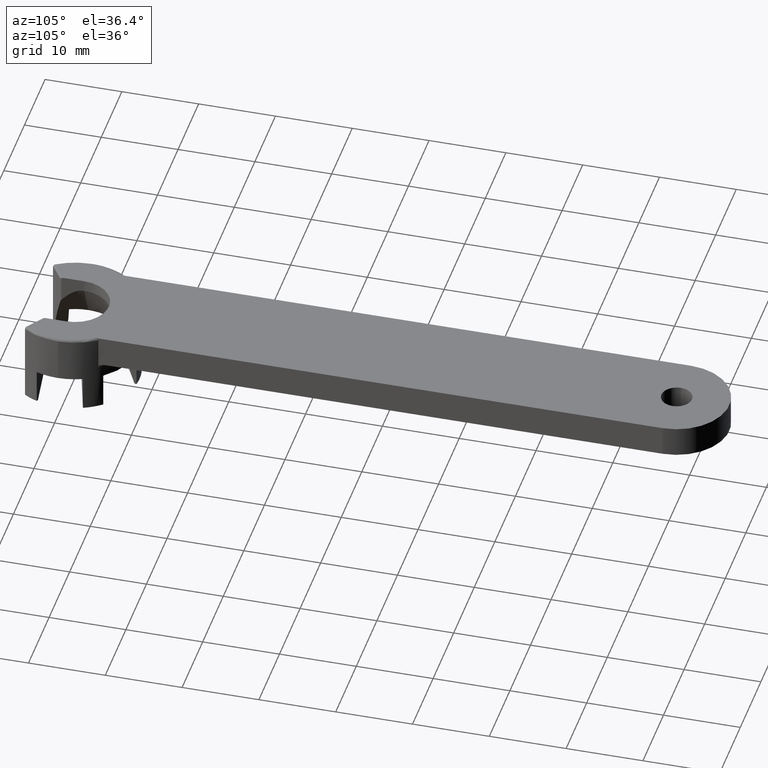
[diagram: clean part render]
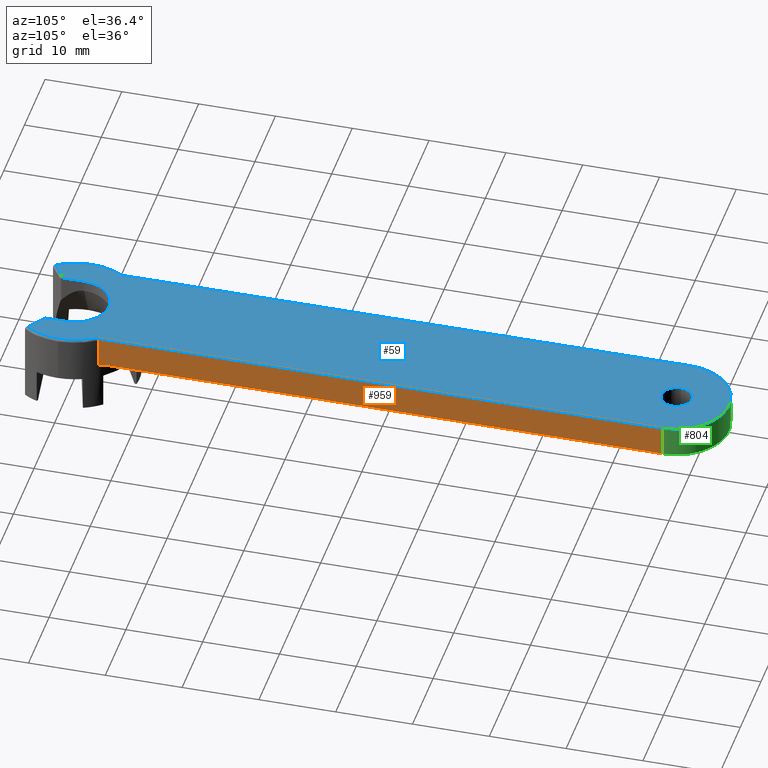
[diagram: same view with three faces highlighted in distinct colors, each labeled with its STEP entity id]
A machine part, auxiliary view with three faces highlighted in distinct colors.
Their STEP definitions:

[orange] entity #959 — the highlighted planar face has unit normal (1, 0, 0).
#29 = ORIENTED_EDGE ( 'NONE', *, *, #1816, .T. ) ;
#65 = CARTESIAN_POINT ( 'NONE',  ( 6.850000001173179400, 4.861841213576216300, -4.500000000667159700 ) ) ;
#69 = VERTEX_POINT ( 'NONE', #126 ) ;
#71 = VERTEX_POINT ( 'NONE', #981 ) ;
#126 = CARTESIAN_POINT ( 'NONE',  ( 6.849999999605628000, 5.682209071596507700, -4.000000000435521800 ) ) ;
#132 = DIRECTION ( 'NONE',  ( 1.000000000000000000, 0.0000000000000000000, 0.0000000000000000000 ) ) ;
#176 = ORIENTED_EDGE ( 'NONE', *, *, #1231, .F. ) ;
#183 = CARTESIAN_POINT ( 'NONE',  ( 6.849999999999983700, 4.752669607071316800, -0.1107333794296606700 ) ) ;
#218 = CARTESIAN_POINT ( 'NONE',  ( 6.850000000000158600, 5.097191367687830900, -4.149656468199564700 ) ) ;
#250 = CARTESIAN_POINT ( 'NONE',  ( 6.849999999999998800, 5.506700625122019400, -4.000000000791916800 ) ) ;
#272 = EDGE_CURVE ( 'NONE', #518, #946, #1308, .T. ) ;
#283 = CARTESIAN_POINT ( 'NONE',  ( 6.849999999999997000, 5.022899319984244200, -4.198901507569537700 ) ) ;
#284 = EDGE_CURVE ( 'NONE', #946, #69, #1718, .T. ) ;
#297 = CARTESIAN_POINT ( 'NONE',  ( 6.849999999999999600, 78.33195793500000500, -4.000000000677499800 ) ) ;
#299 = CARTESIAN_POINT ( 'NONE',  ( 6.850000000000001400, 4.435505287406861900, -1.398266221809085000E-009 ) ) ;
#315 = VECTOR ( 'NONE', #1374, 1000.000000000000000 ) ;
#338 = CARTESIAN_POINT ( 'NONE',  ( 6.850000002346358300, 4.861841211707238500, -5.400000000000000400 ) ) ;
#383 = CARTESIAN_POINT ( 'NONE',  ( 6.849999999605628000, 5.682209071596507700, -4.000000000435521800 ) ) ;
#429 = CARTESIAN_POINT ( 'NONE',  ( 6.849999999999998800, 4.861841214974312200, -0.2428762086956518200 ) ) ;
#464 = DIRECTION ( 'NONE',  ( -0.0000000000000000000, -0.0000000000000000000, -1.000000000000000000 ) ) ;
#466 = VECTOR ( 'NONE', #464, 1000.000000000000000 ) ;
#473 = LINE ( 'NONE', #1778, #1590 ) ;
#478 = CARTESIAN_POINT ( 'NONE',  ( 6.849999999999984500, 4.832323553165372800, -0.1901260061074411500 ) ) ;
#500 = ORIENTED_EDGE ( 'NONE', *, *, #284, .T. ) ;
#518 = VERTEX_POINT ( 'NONE', #1433 ) ;
#534 = DIRECTION ( 'NONE',  ( 0.0000000000000000000, 1.000000000000000000, 0.0000000000000000000 ) ) ;
#550 = CARTESIAN_POINT ( 'NONE',  ( 6.850000000000000500, 41.10540386449999800, -4.000000001354999700 ) ) ;
#581 = VECTOR ( 'NONE', #1165, 1000.000000000000000 ) ;
#582 = CARTESIAN_POINT ( 'NONE',  ( 6.850000001173179400, 4.861841213576216300, -4.500000000667159700 ) ) ;
#593 = CARTESIAN_POINT ( 'NONE',  ( 6.850000000000004100, 4.861841215095461500, -4.411136597396323500 ) ) ;
#649 = ORIENTED_EDGE ( 'NONE', *, *, #272, .T. ) ;
#774 = VERTEX_POINT ( 'NONE', #297 ) ;
#777 = ORIENTED_EDGE ( 'NONE', *, *, #1395, .T. ) ;
#784 = PLANE ( 'NONE',  #1702 ) ;
#851 = VERTEX_POINT ( 'NONE', #872 ) ;
#872 = CARTESIAN_POINT ( 'NONE',  ( 6.850000000122799200, 78.33195793500000500, 0.0000000000000000000 ) ) ;
#946 = VERTEX_POINT ( 'NONE', #65 ) ;
#959 = ADVANCED_FACE ( 'NONE', ( #1175 ), #784, .T. ) ;
#981 = CARTESIAN_POINT ( 'NONE',  ( 6.850000000270616100, 4.322904132074961900, 1.543469040012108700E-010 ) ) ;
#987 = CARTESIAN_POINT ( 'NONE',  ( 6.849999999988751800, 4.548634380269079200, -0.01666168045728944800 ) ) ;
#988 = LINE ( 'NONE', #550, #581 ) ;
#1013 = CARTESIAN_POINT ( 'NONE',  ( 6.849999999988750900, 4.703004633877794700, -0.08173695558695912000 ) ) ;
#1052 = CARTESIAN_POINT ( 'NONE',  ( 6.850000000270616100, 4.322904132074961900, 1.543469040012108700E-010 ) ) ;
#1082 = LINE ( 'NONE', #1811, #315 ) ;
#1165 = DIRECTION ( 'NONE',  ( 0.0000000000000000000, 1.000000000000000000, 0.0000000000000000000 ) ) ;
#1175 = FACE_OUTER_BOUND ( 'NONE', #1537, .T. ) ;
#1207 = CARTESIAN_POINT ( 'NONE',  ( 6.850000000000156900, 5.331695422654891400, -4.035140024523991000 ) ) ;
#1231 = EDGE_CURVE ( 'NONE', #518, #71, #1387, .T. ) ;
#1300 = EDGE_CURVE ( 'NONE', #851, #71, #1082, .T. ) ;
#1308 = LINE ( 'NONE', #338, #466 ) ;
#1371 = DIRECTION ( 'NONE',  ( 0.0000000000000000000, 0.0000000000000000000, 1.000000000000000000 ) ) ;
#1374 = DIRECTION ( 'NONE',  ( -0.0000000000000000000, -1.000000000000000000, -0.0000000000000000000 ) ) ;
#1387 = B_SPLINE_CURVE_WITH_KNOTS ( 'NONE', 3,
 ( #1491, #429, #478, #183, #1013, #987, #299, #1052 ),
 .UNSPECIFIED., .F., .F.,
 ( 4, 2, 2, 4 ),
 ( 1.037318073236176700E-013, 0.0001678969009672620900, 0.0003357938018307923800, 0.0006715876035578529700 ),
 .UNSPECIFIED. ) ;
#1395 = EDGE_CURVE ( 'NONE', #69, #774, #988, .T. ) ;
#1433 = CARTESIAN_POINT ( 'NONE',  ( 6.850000001173179400, 4.861841213318316000, -0.2999999997764299400 ) ) ;
#1491 = CARTESIAN_POINT ( 'NONE',  ( 6.850000001173179400, 4.861841213318316000, -0.2999999997764299400 ) ) ;
#1512 = ORIENTED_EDGE ( 'NONE', *, *, #1300, .T. ) ;
#1537 = EDGE_LOOP ( 'NONE', ( #777, #29, #1512, #176, #649, #500 ) ) ;
#1551 = CARTESIAN_POINT ( 'NONE',  ( 6.849999999999997900, 4.904381124904035400, -4.328624669411599500 ) ) ;
#1590 = VECTOR ( 'NONE', #1371, 1000.000000000000000 ) ;
#1702 = AXIS2_PLACEMENT_3D ( 'NONE', #1821, #132, #534 ) ;
#1718 = B_SPLINE_CURVE_WITH_KNOTS ( 'NONE', 3,
 ( #582, #593, #1551, #283, #218, #1207, #250, #383 ),
 .UNSPECIFIED., .F., .F.,
 ( 4, 2, 2, 4 ),
 ( 0.0000000000000000000, 0.0002610760151110635600, 0.0005221520302221271100, 0.001044304060444256600 ),
 .UNSPECIFIED. ) ;
#1778 = CARTESIAN_POINT ( 'NONE',  ( 6.850000000000000500, 78.33195793500000500, -2.263500000000000100 ) ) ;
#1811 = CARTESIAN_POINT ( 'NONE',  ( 6.850000000245597900, 40.39246102149999000, 0.0000000000000000000 ) ) ;
#1816 = EDGE_CURVE ( 'NONE', #774, #851, #473, .T. ) ;
#1821 = CARTESIAN_POINT ( 'NONE',  ( 6.850000000000000500, 3.878849793999999300, -4.527000000000000100 ) ) ;

[blue] entity #59 — the highlighted planar face has unit normal (0, 0, -1).
#13 = EDGE_CURVE ( 'NONE', #1134, #878, #57, .T. ) ;
#18 = ORIENTED_EDGE ( 'NONE', *, *, #1300, .F. ) ;
#21 = CARTESIAN_POINT ( 'NONE',  ( 0.0000000000000000000, 0.0000000000000000000, 0.0000000000000000000 ) ) ;
#27 = ORIENTED_EDGE ( 'NONE', *, *, #1398, .F. ) ;
#57 =( BOUNDED_CURVE ( )  B_SPLINE_CURVE ( 3, ( #826, #1095, #1400, #1819 ),
 .UNSPECIFIED., .F., .F. ) 
 B_SPLINE_CURVE_WITH_KNOTS ( ( 4, 4 ),
 ( 0.0000000000000000000, 1.000000000000000000 ),
 .UNSPECIFIED. ) 
 CURVE ( )  GEOMETRIC_REPRESENTATION_ITEM ( )  RATIONAL_B_SPLINE_CURVE ( ( 0.9565783021659147700, 0.9289695674636929700, 0.9263604990199240100, 0.9487510968346080100 ) ) 
 REPRESENTATION_ITEM ( '' )  );
#59 = ADVANCED_FACE ( 'NONE', ( #1522, #369 ), #1405, .F. ) ;
#62 = CARTESIAN_POINT ( 'NONE',  ( 8.197199999999998700, -4.934509854999999900, 0.0000000000000000000 ) ) ;
#71 = VERTEX_POINT ( 'NONE', #981 ) ;
#113 = VERTEX_POINT ( 'NONE', #220 ) ;
#146 = DIRECTION ( 'NONE',  ( -0.0000000000000000000, -1.000000000000000000, -0.0000000000000000000 ) ) ;
#151 = DIRECTION ( 'NONE',  ( 1.000000000000000000, 0.0000000000000000000, 0.0000000000000000000 ) ) ;
#169 = CARTESIAN_POINT ( 'NONE',  ( 2.000000000000000000, 78.33195793500000500, 0.0000000000000000000 ) ) ;
#220 = CARTESIAN_POINT ( 'NONE',  ( 4.399999997087198800, 0.0000000000000000000, 0.0000000000000000000 ) ) ;
#236 = DIRECTION ( 'NONE',  ( 0.0000000000000000000, 1.000000000000000000, 0.0000000000000000000 ) ) ;
#241 = CARTESIAN_POINT ( 'NONE',  ( 6.802652084679373900, -4.397035884494505000, 1.281098994956537900E-010 ) ) ;
#247 = VERTEX_POINT ( 'NONE', #262 ) ;
#260 = AXIS2_PLACEMENT_3D ( 'NONE', #798, #1024, #1669 ) ;
#262 = CARTESIAN_POINT ( 'NONE',  ( -2.000000000000000000, 78.33195793500000500, 0.0000000000000000000 ) ) ;
#265 = AXIS2_PLACEMENT_3D ( 'NONE', #21, #829, #151 ) ;
#269 = VECTOR ( 'NONE', #146, 1000.000000000000000 ) ;
#277 = ORIENTED_EDGE ( 'NONE', *, *, #13, .F. ) ;
#315 = VECTOR ( 'NONE', #1374, 1000.000000000000000 ) ;
#319 = DIRECTION ( 'NONE',  ( -1.000000000000000000, 0.0000000000000000000, 0.0000000000000000000 ) ) ;
#344 = ORIENTED_EDGE ( 'NONE', *, *, #527, .F. ) ;
#351 = LINE ( 'NONE', #1661, #1827 ) ;
#360 = CARTESIAN_POINT ( 'NONE',  ( 6.802652084679373900, -4.397035884494505000, 1.281098994956537900E-010 ) ) ;
#364 = DIRECTION ( 'NONE',  ( 1.000000000000000000, 0.0000000000000000000, 0.0000000000000000000 ) ) ;
#369 = FACE_OUTER_BOUND ( 'NONE', #1247, .T. ) ;
#401 = EDGE_CURVE ( 'NONE', #1154, #113, #760, .T. ) ;
#403 = VERTEX_POINT ( 'NONE', #241 ) ;
#404 = CARTESIAN_POINT ( 'NONE',  ( -4.399999994174400800, 40.39246102149999700, 0.0000000000000000000 ) ) ;
#405 = CARTESIAN_POINT ( 'NONE',  ( 4.385584099257846100, -2.704586643915926700, -3.084238051585808100E-010 ) ) ;
#406 = AXIS2_PLACEMENT_3D ( 'NONE', #62, #1285, #319 ) ;
#431 = AXIS2_PLACEMENT_3D ( 'NONE', #1366, #547, #364 ) ;
#448 = EDGE_CURVE ( 'NONE', #513, #1025, #351, .T. ) ;
#507 = DIRECTION ( 'NONE',  ( -0.8191520442890150000, -0.5735764363510129600, 1.184168568868731200E-015 ) ) ;
#513 = VERTEX_POINT ( 'NONE', #694 ) ;
#517 = LINE ( 'NONE', #1594, #916 ) ;
#527 = EDGE_CURVE ( 'NONE', #1723, #513, #1410, .T. ) ;
#531 = DIRECTION ( 'NONE',  ( 0.0000000000000000000, 1.000000000000000000, 0.0000000000000000000 ) ) ;
#547 = DIRECTION ( 'NONE',  ( 0.0000000000000000000, -0.0000000000000000000, 1.000000000000000000 ) ) ;
#575 = CIRCLE ( 'NONE', #260, 2.000000000000000000 ) ;
#577 = ORIENTED_EDGE ( 'NONE', *, *, #1383, .F. ) ;
#587 = CARTESIAN_POINT ( 'NONE',  ( -6.802652084653912500, -4.397035884533621300, 5.306941210911104300E-011 ) ) ;
#621 = ORIENTED_EDGE ( 'NONE', *, *, #1068, .F. ) ;
#653 = EDGE_CURVE ( 'NONE', #856, #851, #884, .T. ) ;
#654 = CARTESIAN_POINT ( 'NONE',  ( 8.588706341926970500, 1.567779754754059100, 3.858672597099918500E-010 ) ) ;
#674 = AXIS2_PLACEMENT_3D ( 'NONE', #803, #1254, #1602 ) ;
#694 = CARTESIAN_POINT ( 'NONE',  ( -4.400000000000000400, -2.714680815240102500, -2.827032499156528800E-010 ) ) ;
#698 =( BOUNDED_CURVE ( )  B_SPLINE_CURVE ( 3, ( #1733, #654, #780, #360 ),
 .UNSPECIFIED., .F., .T. ) 
 B_SPLINE_CURVE_WITH_KNOTS ( ( 4, 4 ),
 ( 0.0000000000000000000, 1.000000000000000000 ),
 .UNSPECIFIED. ) 
 CURVE ( )  GEOMETRIC_REPRESENTATION_ITEM ( )  RATIONAL_B_SPLINE_CURVE ( ( 0.9395649842596003300, 0.8458369723283696300, 0.8515080782971657900, 0.9565783021659889400 ) ) 
 REPRESENTATION_ITEM ( '' )  );
#703 = CARTESIAN_POINT ( 'NONE',  ( -8.100000000192629600, -1.570955411027285400, 3.858672585732427700E-010 ) ) ;
#725 = CARTESIAN_POINT ( 'NONE',  ( -7.655435703676529300, -3.077694767991057600, 3.858672585732427700E-010 ) ) ;
#760 = LINE ( 'NONE', #1523, #1544 ) ;
#765 = ORIENTED_EDGE ( 'NONE', *, *, #401, .F. ) ;
#780 = CARTESIAN_POINT ( 'NONE',  ( 8.559396322479580400, -1.679177736328699500, 3.858672597239365100E-010 ) ) ;
#798 = CARTESIAN_POINT ( 'NONE',  ( 0.0000000000000000000, 78.33195793500000500, 0.0000000000000000000 ) ) ;
#803 = CARTESIAN_POINT ( 'NONE',  ( 0.0000000000000000000, 78.33195793500000500, 0.0000000000000000000 ) ) ;
#826 = CARTESIAN_POINT ( 'NONE',  ( -8.099999998508527800, 1.666044177617287100E-008, 2.315203560196361700E-010 ) ) ;
#829 = DIRECTION ( 'NONE',  ( 0.0000000000000000000, -0.0000000000000000000, 1.000000000000000000 ) ) ;
#839 = ORIENTED_EDGE ( 'NONE', *, *, #1112, .F. ) ;
#851 = VERTEX_POINT ( 'NONE', #872 ) ;
#856 = VERTEX_POINT ( 'NONE', #1440 ) ;
#868 = VECTOR ( 'NONE', #1341, 1000.000000000000000 ) ;
#872 = CARTESIAN_POINT ( 'NONE',  ( 6.850000000122799200, 78.33195793500000500, 0.0000000000000000000 ) ) ;
#878 = VERTEX_POINT ( 'NONE', #1199 ) ;
#884 = CIRCLE ( 'NONE', #674, 6.850000000000000500 ) ;
#916 = VECTOR ( 'NONE', #531, 1000.000000000000000 ) ;
#981 = CARTESIAN_POINT ( 'NONE',  ( 6.850000000270616100, 4.322904132074961900, 1.543469040012108700E-010 ) ) ;
#997 = EDGE_CURVE ( 'NONE', #1192, #247, #575, .T. ) ;
#1024 = DIRECTION ( 'NONE',  ( 0.0000000000000000000, -0.0000000000000000000, 1.000000000000000000 ) ) ;
#1025 = VERTEX_POINT ( 'NONE', #587 ) ;
#1045 = CARTESIAN_POINT ( 'NONE',  ( -8.099999998508527800, 1.666044177617287400E-008, 2.315203560196361700E-010 ) ) ;
#1068 = EDGE_CURVE ( 'NONE', #247, #1192, #1562, .T. ) ;
#1082 = LINE ( 'NONE', #1811, #315 ) ;
#1085 = ORIENTED_EDGE ( 'NONE', *, *, #653, .F. ) ;
#1095 = CARTESIAN_POINT ( 'NONE',  ( -8.100000000192631300, 1.538247367291374600, 3.858672598290071700E-010 ) ) ;
#1112 = EDGE_CURVE ( 'NONE', #878, #856, #517, .T. ) ;
#1133 = CARTESIAN_POINT ( 'NONE',  ( -6.802652084653912500, -4.397035884533621300, 5.306941210911104300E-011 ) ) ;
#1134 = VERTEX_POINT ( 'NONE', #1045 ) ;
#1142 = EDGE_CURVE ( 'NONE', #403, #1154, #1678, .T. ) ;
#1154 = VERTEX_POINT ( 'NONE', #1173 ) ;
#1173 = CARTESIAN_POINT ( 'NONE',  ( 4.399999997087197000, -2.714680776960466600, -2.313175286082838600E-010 ) ) ;
#1190 = ORIENTED_EDGE ( 'NONE', *, *, #1283, .F. ) ;
#1192 = VERTEX_POINT ( 'NONE', #169 ) ;
#1199 = CARTESIAN_POINT ( 'NONE',  ( -6.850000000012268100, 4.322904132930053000, 1.543469039893453600E-010 ) ) ;
#1247 = EDGE_LOOP ( 'NONE', ( #1786, #1190, #18, #1085, #839, #277, #577, #1773, #344, #27, #765 ) ) ;
#1254 = DIRECTION ( 'NONE',  ( -0.0000000000000000000, 0.0000000000000000000, -1.000000000000000000 ) ) ;
#1283 = EDGE_CURVE ( 'NONE', #71, #403, #698, .T. ) ;
#1285 = DIRECTION ( 'NONE',  ( 0.0000000000000000000, 0.0000000000000000000, -1.000000000000000000 ) ) ;
#1300 = EDGE_CURVE ( 'NONE', #851, #71, #1082, .T. ) ;
#1341 = DIRECTION ( 'NONE',  ( -0.8191520442890161100, 0.5735764363510113000, -0.0000000000000000000 ) ) ;
#1366 = CARTESIAN_POINT ( 'NONE',  ( 0.0000000000000000000, 78.33195793500000500, 0.0000000000000000000 ) ) ;
#1374 = DIRECTION ( 'NONE',  ( -0.0000000000000000000, -1.000000000000000000, -0.0000000000000000000 ) ) ;
#1383 = EDGE_CURVE ( 'NONE', #1025, #1134, #1579, .T. ) ;
#1398 = EDGE_CURVE ( 'NONE', #113, #1723, #1749, .T. ) ;
#1400 = CARTESIAN_POINT ( 'NONE',  ( -7.673262290975019400, 3.018376757509134000, 3.858672598235767800E-010 ) ) ;
#1405 = PLANE ( 'NONE',  #406 ) ;
#1410 = LINE ( 'NONE', #404, #269 ) ;
#1419 = ORIENTED_EDGE ( 'NONE', *, *, #997, .F. ) ;
#1440 = CARTESIAN_POINT ( 'NONE',  ( -6.850000000122798300, 78.33195793359504900, 0.0000000000000000000 ) ) ;
#1502 = CARTESIAN_POINT ( 'NONE',  ( -4.399999997087198800, 0.0000000000000000000, 0.0000000000000000000 ) ) ;
#1522 = FACE_BOUND ( 'NONE', #1524, .T. ) ;
#1523 = CARTESIAN_POINT ( 'NONE',  ( 4.399999994174399900, 40.39246102149999700, 0.0000000000000000000 ) ) ;
#1524 = EDGE_LOOP ( 'NONE', ( #1419, #621 ) ) ;
#1544 = VECTOR ( 'NONE', #236, 1000.000000000000000 ) ;
#1562 = CIRCLE ( 'NONE', #431, 2.000000000000000000 ) ;
#1579 =( BOUNDED_CURVE ( )  B_SPLINE_CURVE ( 3, ( #1133, #725, #703, #1824 ),
 .UNSPECIFIED., .F., .T. ) 
 B_SPLINE_CURVE_WITH_KNOTS ( ( 4, 4 ),
 ( 0.0000000000000000000, 1.000000000000000000 ),
 .UNSPECIFIED. ) 
 CURVE ( )  GEOMETRIC_REPRESENTATION_ITEM ( )  RATIONAL_B_SPLINE_CURVE ( ( 0.9565783021659179900, 0.9305102234900839400, 0.9305102234900839400, 0.9565783021659179900 ) ) 
 REPRESENTATION_ITEM ( '' )  );
#1594 = CARTESIAN_POINT ( 'NONE',  ( -6.850000000245598700, 40.39246102149999700, 0.0000000000000000000 ) ) ;
#1602 = DIRECTION ( 'NONE',  ( 1.000000000000000000, 0.0000000000000000000, 0.0000000000000000000 ) ) ;
#1661 = CARTESIAN_POINT ( 'NONE',  ( -6.802652061140793900, -4.397035923640124200, -2.827010001961449700E-010 ) ) ;
#1669 = DIRECTION ( 'NONE',  ( 1.000000000000000000, 0.0000000000000000000, 0.0000000000000000000 ) ) ;
#1678 = LINE ( 'NONE', #405, #868 ) ;
#1723 = VERTEX_POINT ( 'NONE', #1502 ) ;
#1733 = CARTESIAN_POINT ( 'NONE',  ( 6.850000000270616100, 4.322904132074961900, 1.543469040012108700E-010 ) ) ;
#1749 = CIRCLE ( 'NONE', #265, 4.400000000000000400 ) ;
#1773 = ORIENTED_EDGE ( 'NONE', *, *, #448, .F. ) ;
#1786 = ORIENTED_EDGE ( 'NONE', *, *, #1142, .F. ) ;
#1811 = CARTESIAN_POINT ( 'NONE',  ( 6.850000000245597900, 40.39246102149999000, 0.0000000000000000000 ) ) ;
#1819 = CARTESIAN_POINT ( 'NONE',  ( -6.850000000012268100, 4.322904132930053000, 1.543469039893453600E-010 ) ) ;
#1824 = CARTESIAN_POINT ( 'NONE',  ( -8.099999998508527800, 1.666044177617287400E-008, 2.315203560196361700E-010 ) ) ;
#1827 = VECTOR ( 'NONE', #507, 1000.000000000000000 ) ;

[green] entity #804 — the highlighted cylindrical surface (partial cylindrical patch) has radius 6.85 mm, axis along (0, -0, 1).
#6 = CIRCLE ( 'NONE', #1307, 6.850000000000000500 ) ;
#14 = CARTESIAN_POINT ( 'NONE',  ( -6.850000000000000500, 78.33195793219007900, -2.000000000000000000 ) ) ;
#36 = CARTESIAN_POINT ( 'NONE',  ( 0.0000000000000000000, 78.33195793500000500, -4.000000000000000000 ) ) ;
#76 = EDGE_CURVE ( 'NONE', #1267, #774, #6, .T. ) ;
#297 = CARTESIAN_POINT ( 'NONE',  ( 6.849999999999999600, 78.33195793500000500, -4.000000000677499800 ) ) ;
#316 = ORIENTED_EDGE ( 'NONE', *, *, #76, .F. ) ;
#323 = AXIS2_PLACEMENT_3D ( 'NONE', #1413, #740, #673 ) ;
#353 = ORIENTED_EDGE ( 'NONE', *, *, #1816, .F. ) ;
#473 = LINE ( 'NONE', #1778, #1590 ) ;
#553 = CYLINDRICAL_SURFACE ( 'NONE', #323, 6.850000000000000500 ) ;
#653 = EDGE_CURVE ( 'NONE', #856, #851, #884, .T. ) ;
#673 = DIRECTION ( 'NONE',  ( 1.000000000000000000, 0.0000000000000000000, 0.0000000000000000000 ) ) ;
#674 = AXIS2_PLACEMENT_3D ( 'NONE', #803, #1254, #1602 ) ;
#740 = DIRECTION ( 'NONE',  ( 0.0000000000000000000, -0.0000000000000000000, 1.000000000000000000 ) ) ;
#774 = VERTEX_POINT ( 'NONE', #297 ) ;
#803 = CARTESIAN_POINT ( 'NONE',  ( 0.0000000000000000000, 78.33195793500000500, 0.0000000000000000000 ) ) ;
#804 = ADVANCED_FACE ( 'NONE', ( #1435 ), #553, .T. ) ;
#830 = CARTESIAN_POINT ( 'NONE',  ( -6.849999999999999600, 78.33195793359504900, -4.000000000677499800 ) ) ;
#851 = VERTEX_POINT ( 'NONE', #872 ) ;
#856 = VERTEX_POINT ( 'NONE', #1440 ) ;
#872 = CARTESIAN_POINT ( 'NONE',  ( 6.850000000122799200, 78.33195793500000500, 0.0000000000000000000 ) ) ;
#884 = CIRCLE ( 'NONE', #674, 6.850000000000000500 ) ;
#1168 = ORIENTED_EDGE ( 'NONE', *, *, #653, .T. ) ;
#1200 = EDGE_LOOP ( 'NONE', ( #353, #316, #1829, #1168 ) ) ;
#1254 = DIRECTION ( 'NONE',  ( -0.0000000000000000000, 0.0000000000000000000, -1.000000000000000000 ) ) ;
#1267 = VERTEX_POINT ( 'NONE', #830 ) ;
#1293 = DIRECTION ( 'NONE',  ( 1.000000000000000000, 0.0000000000000000000, 0.0000000000000000000 ) ) ;
#1307 = AXIS2_PLACEMENT_3D ( 'NONE', #36, #1612, #1293 ) ;
#1371 = DIRECTION ( 'NONE',  ( 0.0000000000000000000, 0.0000000000000000000, 1.000000000000000000 ) ) ;
#1373 = LINE ( 'NONE', #14, #1701 ) ;
#1413 = CARTESIAN_POINT ( 'NONE',  ( 0.0000000000000000000, 78.33195793500000500, -4.000000000000000000 ) ) ;
#1423 = EDGE_CURVE ( 'NONE', #856, #1267, #1373, .T. ) ;
#1435 = FACE_OUTER_BOUND ( 'NONE', #1200, .T. ) ;
#1440 = CARTESIAN_POINT ( 'NONE',  ( -6.850000000122798300, 78.33195793359504900, 0.0000000000000000000 ) ) ;
#1590 = VECTOR ( 'NONE', #1371, 1000.000000000000000 ) ;
#1602 = DIRECTION ( 'NONE',  ( 1.000000000000000000, 0.0000000000000000000, 0.0000000000000000000 ) ) ;
#1612 = DIRECTION ( 'NONE',  ( -0.0000000000000000000, 0.0000000000000000000, -1.000000000000000000 ) ) ;
#1662 = DIRECTION ( 'NONE',  ( -0.0000000000000000000, -0.0000000000000000000, -1.000000000000000000 ) ) ;
#1701 = VECTOR ( 'NONE', #1662, 1000.000000000000000 ) ;
#1778 = CARTESIAN_POINT ( 'NONE',  ( 6.850000000000000500, 78.33195793500000500, -2.263500000000000100 ) ) ;
#1816 = EDGE_CURVE ( 'NONE', #774, #851, #473, .T. ) ;
#1829 = ORIENTED_EDGE ( 'NONE', *, *, #1423, .F. ) ;